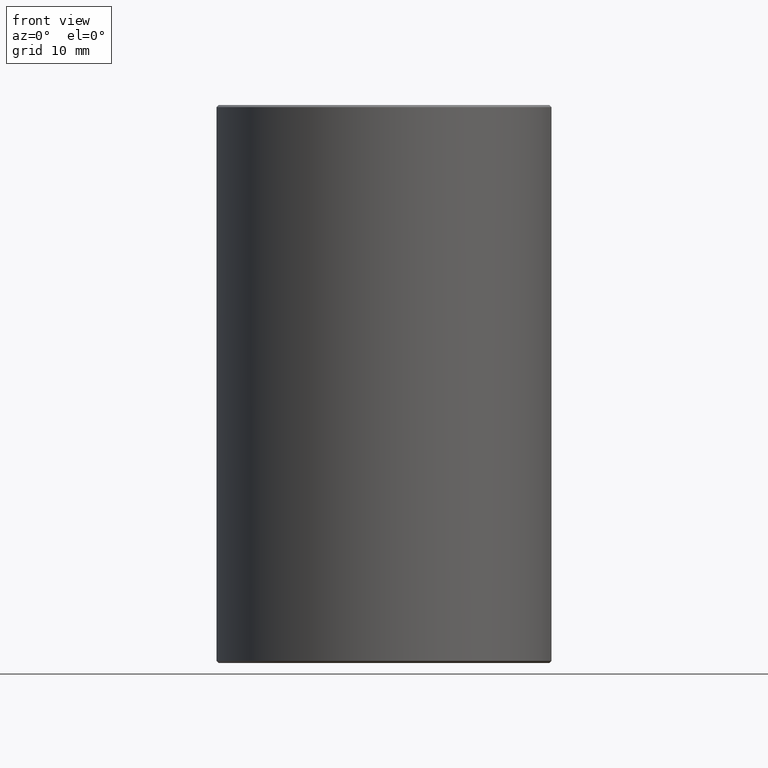
[diagram: clean part render]
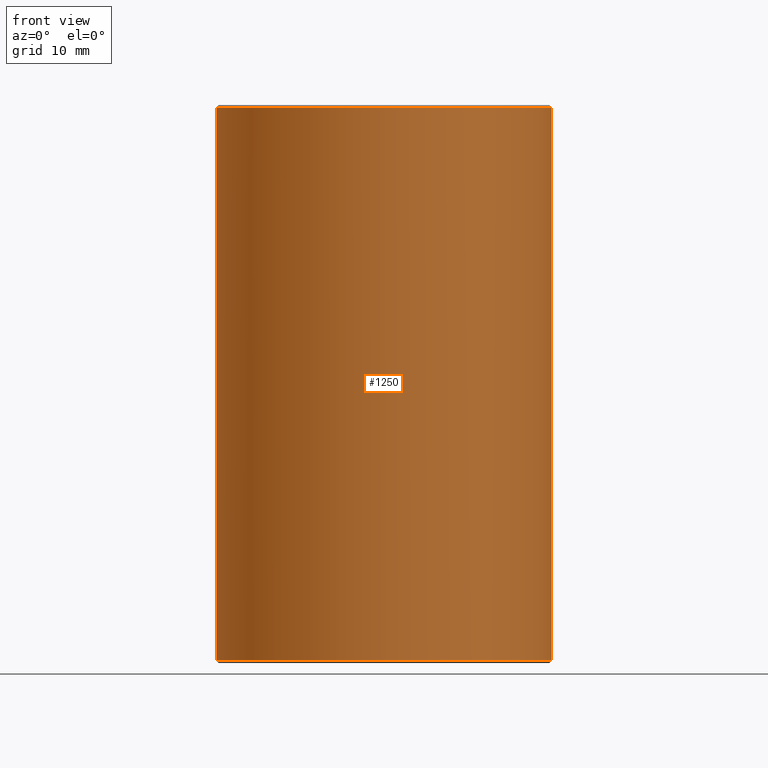
[diagram: same view with one face highlighted and labeled with its STEP entity id]
A machine part, front view. The second image highlights one B-rep face of the part: STEP entity #1250.
In plain terms, the highlighted cylindrical surface (partial cylindrical patch) has radius 15.25 mm, axis along (0, 0, -1).
Its self-contained STEP definition (entity closure, byte-faithful):
#4 = ORIENTED_EDGE ( 'NONE', *, *, #1073, .F. ) ;
#9 = AXIS2_PLACEMENT_3D ( 'NONE', #1409, #2147, #1010 ) ;
#22 = EDGE_CURVE ( 'NONE', #265, #730, #2052, .T. ) ;
#30 = ORIENTED_EDGE ( 'NONE', *, *, #1712, .T. ) ;
#69 = CARTESIAN_POINT ( 'NONE',  ( -7.776507174585742453E-16, -1.216263278479431880E-30, 6.350000000000001421 ) ) ;
#114 = FACE_OUTER_BOUND ( 'NONE', #542, .T. ) ;
#224 = ORIENTED_EDGE ( 'NONE', *, *, #412, .T. ) ;
#265 = VERTEX_POINT ( 'NONE', #1879 ) ;
#412 = EDGE_CURVE ( 'NONE', #1166, #2275, #761, .T. ) ;
#482 = CARTESIAN_POINT ( 'NONE',  ( -15.25000000000000000, -3.735172737399429118E-15, 6.349999999999999645 ) ) ;
#530 = CARTESIAN_POINT ( 'NONE',  ( 15.25000000000000711, -1.216263278479431880E-30, -44.25000000000000000 ) ) ;
#542 = EDGE_LOOP ( 'NONE', ( #224, #30, #575, #4 ) ) ;
#571 = LINE ( 'NONE', #780, #602 ) ;
#575 = ORIENTED_EDGE ( 'NONE', *, *, #22, .T. ) ;
#602 = VECTOR ( 'NONE', #1770, 1000.000000000000000 ) ;
#714 = AXIS2_PLACEMENT_3D ( 'NONE', #736, #2101, #1739 ) ;
#730 = VERTEX_POINT ( 'NONE', #530 ) ;
#736 = CARTESIAN_POINT ( 'NONE',  ( 5.419062086227032672E-15, -1.216263278479431880E-30, -44.25000000000000000 ) ) ;
#761 = CIRCLE ( 'NONE', #9, 15.25000000000000000 ) ;
#780 = CARTESIAN_POINT ( 'NONE',  ( 15.25000000000000000, 1.867586368699712587E-15, 6.350000000000003197 ) ) ;
#865 = DIRECTION ( 'NONE',  ( 1.000000000000000000, 1.224646799147353207E-16, 1.137523590804463576E-16 ) ) ;
#1010 = DIRECTION ( 'NONE',  ( 1.000000000000000000, 1.224646799147353207E-16, 1.137523590804463576E-16 ) ) ;
#1012 = CARTESIAN_POINT ( 'NONE',  ( 15.25000000000000000, 1.867586368699712587E-15, 6.150000000000011013 ) ) ;
#1073 = EDGE_CURVE ( 'NONE', #1166, #730, #571, .T. ) ;
#1166 = VERTEX_POINT ( 'NONE', #1012 ) ;
#1250 = ADVANCED_FACE ( 'NONE', ( #114 ), #1460, .T. ) ;
#1409 = CARTESIAN_POINT ( 'NONE',  ( -7.531577814756281228E-16, -1.216263278479431880E-30, 6.150000000000009237 ) ) ;
#1441 = DIRECTION ( 'NONE',  ( 1.224646799147353207E-16, 0.000000000000000000, -1.000000000000000000 ) ) ;
#1460 = CYLINDRICAL_SURFACE ( 'NONE', #2071, 15.25000000000000000 ) ;
#1484 = DIRECTION ( 'NONE',  ( 1.224646799147353207E-16, 0.000000000000000000, -1.000000000000000000 ) ) ;
#1638 = LINE ( 'NONE', #482, #2192 ) ;
#1712 = EDGE_CURVE ( 'NONE', #2275, #265, #1638, .T. ) ;
#1718 = CARTESIAN_POINT ( 'NONE',  ( -15.25000000000000000, -3.735172737399429907E-15, 6.150000000000007461 ) ) ;
#1739 = DIRECTION ( 'NONE',  ( 1.000000000000000000, 1.224646799147353207E-16, 0.000000000000000000 ) ) ;
#1770 = DIRECTION ( 'NONE',  ( 1.224646799147353207E-16, 0.000000000000000000, -1.000000000000000000 ) ) ;
#1879 = CARTESIAN_POINT ( 'NONE',  ( -15.24999999999999289, -1.867586368699714559E-15, -44.25000000000000000 ) ) ;
#2052 = CIRCLE ( 'NONE', #714, 15.25000000000000000 ) ;
#2071 = AXIS2_PLACEMENT_3D ( 'NONE', #69, #1441, #865 ) ;
#2101 = DIRECTION ( 'NONE',  ( -1.224646799147353207E-16, -0.000000000000000000, 1.000000000000000000 ) ) ;
#2147 = DIRECTION ( 'NONE',  ( 1.224646799147353207E-16, 0.000000000000000000, -1.000000000000000000 ) ) ;
#2192 = VECTOR ( 'NONE', #1484, 1000.000000000000000 ) ;
#2275 = VERTEX_POINT ( 'NONE', #1718 ) ;